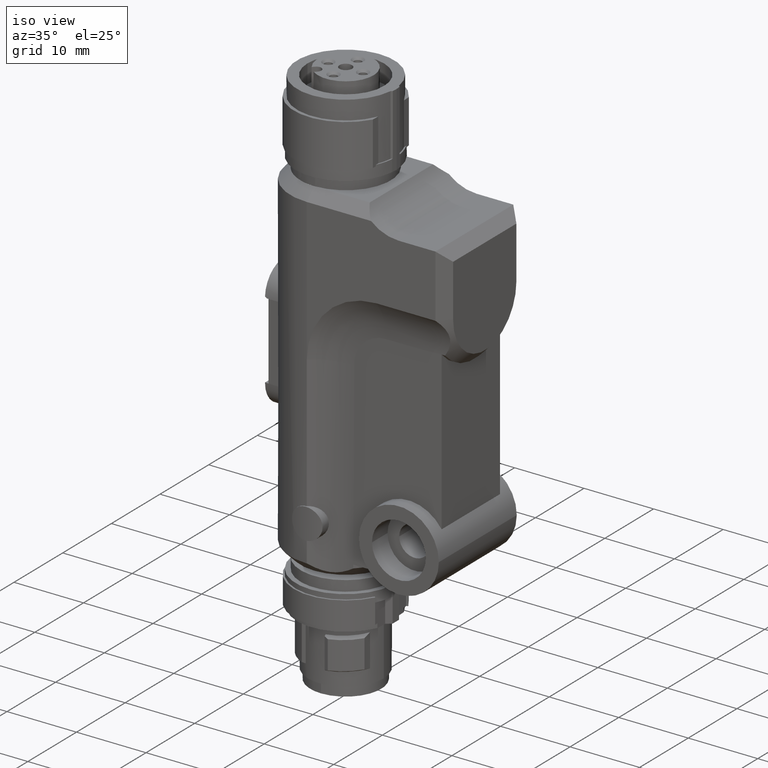
[diagram: clean part render]
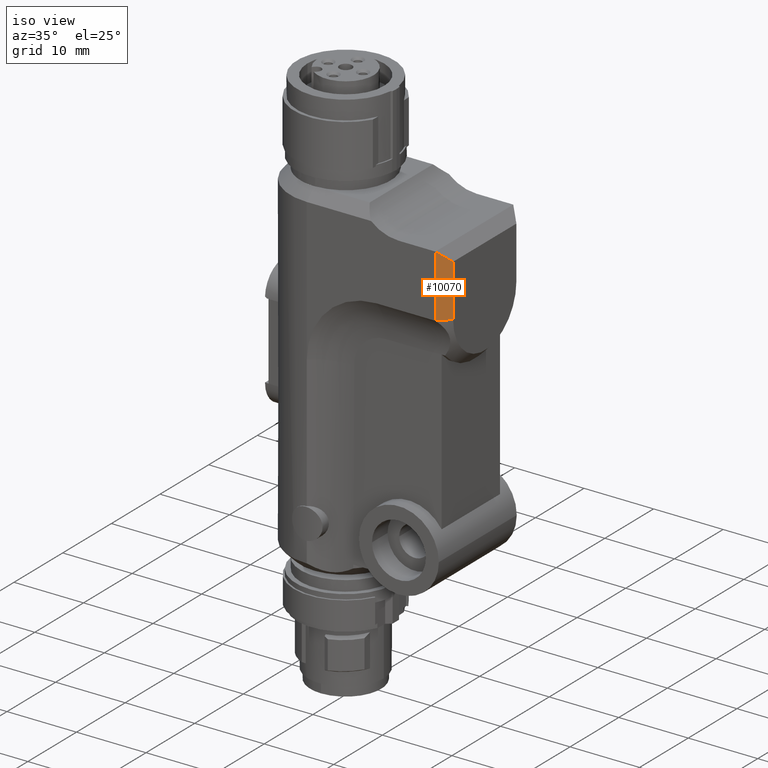
[diagram: same view with one face highlighted and labeled with its STEP entity id]
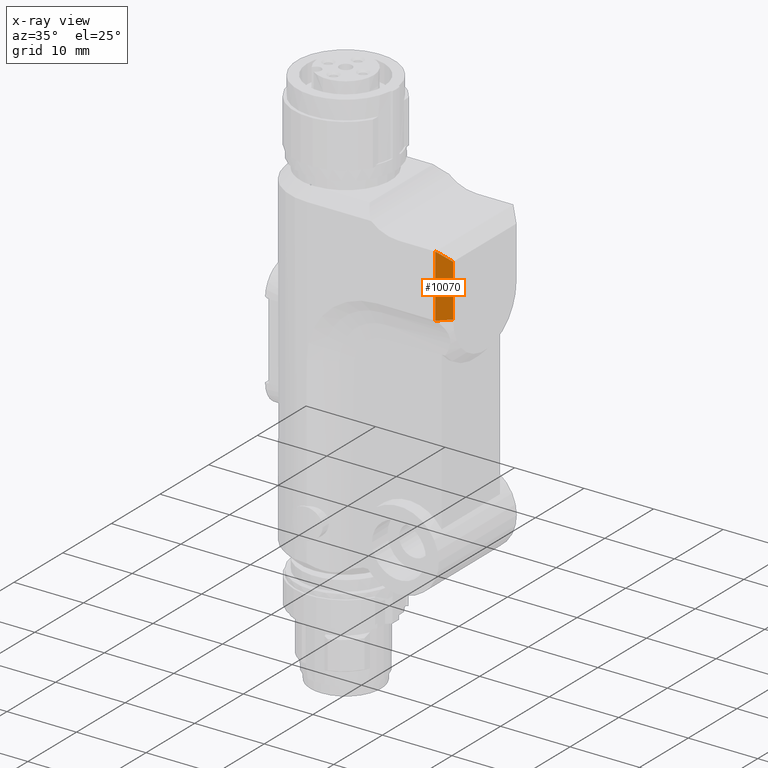
[diagram: x-ray of the same camera — body ghosted, the highlighted face saturated]
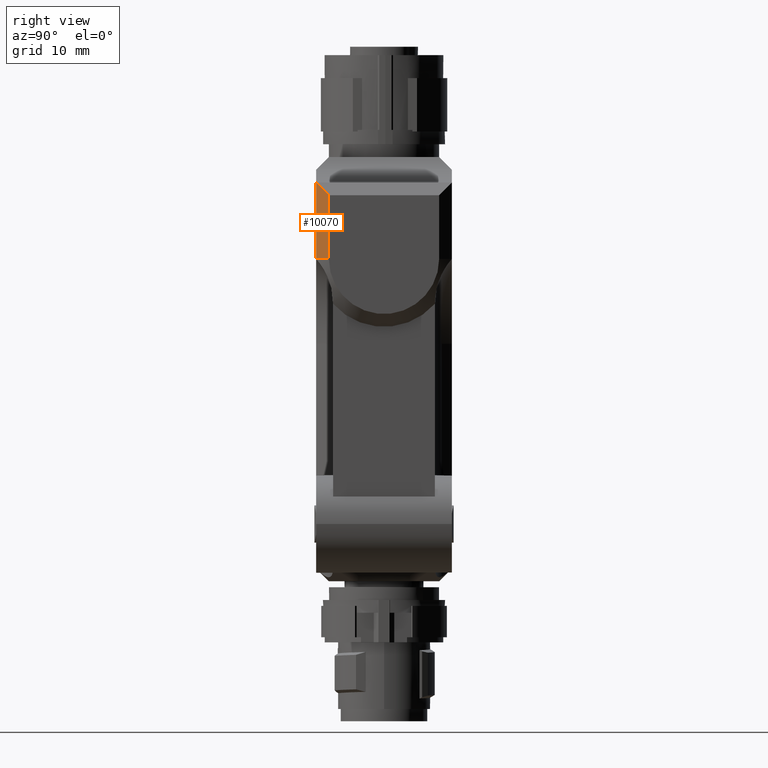
[diagram: same view with one face highlighted and labeled with its STEP entity id]
A machine part, iso view. The second image highlights one B-rep face of the part: STEP entity #10070.
The next image is the same camera in x-ray: the body ghosted, the highlighted face saturated — about 0% of this face is hidden behind the body in this view.
A second angle (right view) of the same face is appended — the face is thin or edge-on in the first view.
In plain terms, the highlighted planar face has unit normal (0.7071, -0.7071, 0).
Its self-contained STEP definition (entity closure, byte-faithful):
#9580=CARTESIAN_POINT('',(7.25000000000001,19.25,42.5));
#9590=DIRECTION('',(0.707106781186564,0.707106781186531,0.));
#9600=DIRECTION('',(0.707106781186531,-0.707106781186564,0.));
#9610=AXIS2_PLACEMENT_3D('',#9580,#9590,#9600);
#9620=PLANE('',#9610);
#9630=CARTESIAN_POINT('',(7.99999999999999,18.5,37.9999984046267));
#9640=CARTESIAN_POINT('',(7.50000000000003,19.,37.9999989364178));
#9650=CARTESIAN_POINT('',(7.00000000000009,19.5,37.999999468209));
#9660=CARTESIAN_POINT('',(6.50000000000013,20.,38.0000000000001));
#9670=B_SPLINE_CURVE_WITH_KNOTS('',3,(#9630,#9640,#9650,#9660),
.UNSPECIFIED.,.F.,.F.,(4,4),(0.,2.12132034356013),.UNSPECIFIED.);
#9680=CARTESIAN_POINT('',(7.99999859336715,18.5000014066329,
37.9999984050278));
#9690=VERTEX_POINT('',#9680);
#9700=CARTESIAN_POINT('',(6.50000000000003,20.,38.0000000000001));
#9710=VERTEX_POINT('',#9700);
#9720=EDGE_CURVE('',#9690,#9710,#9670,.T.);
#9730=ORIENTED_EDGE('',*,*,#9720,.T.);
#9740=CARTESIAN_POINT('',(14.0000000000001,12.4999999999996,
32.7084973778708));
#9750=DIRECTION('',(0.707106781186564,0.707106781186531,0.));
#9760=DIRECTION('',(0.707106781186531,-0.707106781186564,0.));
#9770=AXIS2_PLACEMENT_3D('',#9740,#9750,#9760);
#9780=ELLIPSE('',#9770,11.3137084989852,8.00000000000009);
#9790=CARTESIAN_POINT('',(8.,18.5,38.));
#9800=VERTEX_POINT('',#9790);
#9810=EDGE_CURVE('',#9690,#9800,#9780,.T.);
#9820=ORIENTED_EDGE('',*,*,#9810,.F.);
#9830=CARTESIAN_POINT('',(8.,18.5,0.));
#9840=DIRECTION('',(0.,0.,-1.));
#9850=VECTOR('',#9840,1.);
#9860=LINE('',#9830,#9850);
#9870=CARTESIAN_POINT('',(8.,18.5,47.));
#9880=VERTEX_POINT('',#9870);
#9890=EDGE_CURVE('',#9880,#9800,#9860,.T.);
#9900=ORIENTED_EDGE('',*,*,#9890,.T.);
#9910=CARTESIAN_POINT('',(-38.9999999999979,65.5,0.));
#9920=DIRECTION('',(0.577350269189608,-0.577350269189635,
0.577350269189635));
#9930=VECTOR('',#9920,1.);
#9940=LINE('',#9910,#9930);
#9950=CARTESIAN_POINT('',(6.50000000000003,20.,45.5));
#9960=VERTEX_POINT('',#9950);
#9970=EDGE_CURVE('',#9960,#9880,#9940,.T.);
#9980=ORIENTED_EDGE('',*,*,#9970,.T.);
#9990=CARTESIAN_POINT('',(6.50000000000003,20.,0.));
#10000=DIRECTION('',(0.,0.,-1.));
#10010=VECTOR('',#10000,1.);
#10020=LINE('',#9990,#10010);
#10030=EDGE_CURVE('',#9960,#9710,#10020,.T.);
#10040=ORIENTED_EDGE('',*,*,#10030,.F.);
#10050=EDGE_LOOP('',(#10040,#9980,#9900,#9820,#9730));
#10060=FACE_OUTER_BOUND('',#10050,.T.);
#10070=ADVANCED_FACE('',(#10060),#9620,.T.);